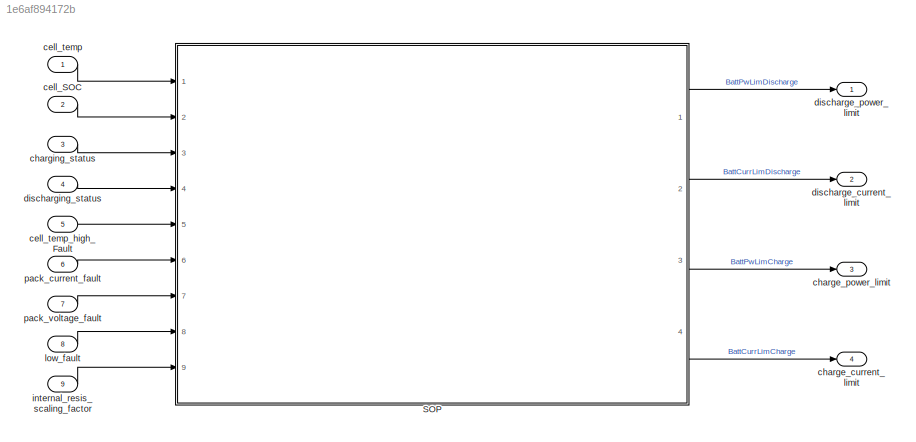
MODEL slx_1e6af894172b
KIND model
CONFIG AbsTol = auto
CONFIG FixedStep = 0.01
CONFIG MaxStep = auto
CONFIG MinStep = auto
CONFIG RelTol = 1e-3
CONFIG SampleTimeConstraint = Unconstrained
CONFIG Solver = FixedStepAuto
CONFIG SolverMode = SingleTasking
CONFIG SolverName = FixedStepAuto
CONFIG StartTime = 0.0
CONFIG StopTime = 10.0
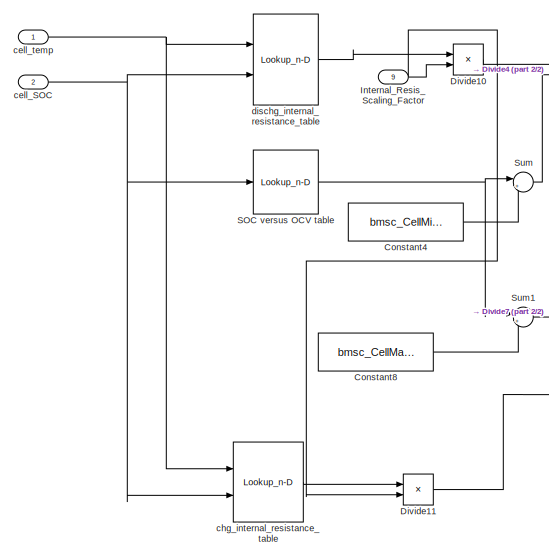
[diagram: SOP - part 1/2, middle left region]
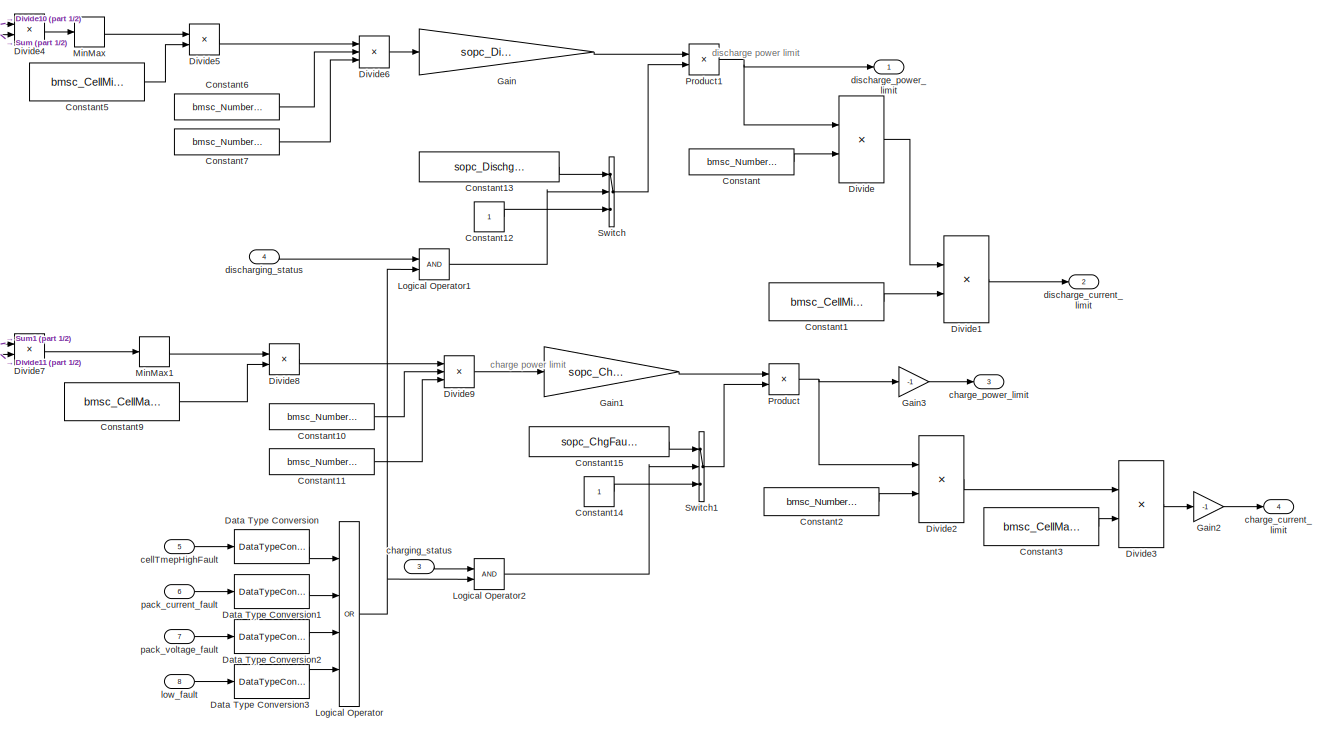
[diagram: SOP - part 2/2, center side, full height]
BLOCK [SubSystem] SOP
  Ports = [9, 4]
  RequestExecContextInheritance = off
  TreatAsAtomicUnit = on
  Variant = off
BLOCK [Constant] SOP/Constant
  Value = bmsc_NumberInSeries*bmsc_NumberInPara
BLOCK [Constant] SOP/Constant1
  Value = bmsc_CellMinVolt
BLOCK [Constant] SOP/Constant10
  Value = bmsc_NumberInSeries
BLOCK [Constant] SOP/Constant11
  Value = bmsc_NumberInPara
BLOCK [Constant] SOP/Constant12
BLOCK [Constant] SOP/Constant13
  Value = sopc_DischgFaultDerate
BLOCK [Constant] SOP/Constant14
BLOCK [Constant] SOP/Constant15
  Value = sopc_ChgFaultDerate
BLOCK [Constant] SOP/Constant2
  Value = bmsc_NumberInSeries*bmsc_NumberInPara
BLOCK [Constant] SOP/Constant3
  Value = bmsc_CellMaxVolt
BLOCK [Constant] SOP/Constant4
  Value = bmsc_CellMinVolt
BLOCK [Constant] SOP/Constant5
  Value = bmsc_CellMinVolt
BLOCK [Constant] SOP/Constant6
  Value = bmsc_NumberInSeries
BLOCK [Constant] SOP/Constant7
  Value = bmsc_NumberInPara
BLOCK [Constant] SOP/Constant8
  Value = bmsc_CellMaxVolt
BLOCK [Constant] SOP/Constant9
  Value = bmsc_CellMaxVolt
BLOCK [DataTypeConversion] SOP/Data Type Conversion
  OutDataTypeStr = boolean
  RndMeth = Floor
  SaturateOnIntegerOverflow = off
BLOCK [DataTypeConversion] SOP/Data Type Conversion1
  OutDataTypeStr = boolean
  RndMeth = Floor
  SaturateOnIntegerOverflow = off
BLOCK [DataTypeConversion] SOP/Data Type Conversion2
  OutDataTypeStr = boolean
  RndMeth = Floor
  SaturateOnIntegerOverflow = off
BLOCK [DataTypeConversion] SOP/Data Type Conversion3
  OutDataTypeStr = boolean
  RndMeth = Floor
  SaturateOnIntegerOverflow = off
BLOCK [Product] SOP/Divide
  InputSameDT = off
  Inputs = */
  OutDataTypeStr = Inherit: Inherit via internal rule
  Ports = [2, 1]
  RndMeth = Floor
  SaturateOnIntegerOverflow = off
BLOCK [Product] SOP/Divide1
  InputSameDT = off
  Inputs = */
  OutDataTypeStr = Inherit: Inherit via internal rule
  Ports = [2, 1]
  RndMeth = Floor
  SaturateOnIntegerOverflow = off
BLOCK [Product] SOP/Divide10
  InputSameDT = off
  Inputs = */
  OutDataTypeStr = Inherit: Inherit via internal rule
  Ports = [2, 1]
  RndMeth = Floor
  SaturateOnIntegerOverflow = off
BLOCK [Product] SOP/Divide11
  InputSameDT = off
  Inputs = */
  OutDataTypeStr = Inherit: Inherit via internal rule
  Ports = [2, 1]
  RndMeth = Floor
  SaturateOnIntegerOverflow = off
BLOCK [Product] SOP/Divide2
  InputSameDT = off
  Inputs = */
  OutDataTypeStr = Inherit: Inherit via internal rule
  Ports = [2, 1]
  RndMeth = Floor
  SaturateOnIntegerOverflow = off
BLOCK [Product] SOP/Divide3
  InputSameDT = off
  Inputs = */
  OutDataTypeStr = Inherit: Inherit via internal rule
  Ports = [2, 1]
  RndMeth = Floor
  SaturateOnIntegerOverflow = off
BLOCK [Product] SOP/Divide4
  InputSameDT = off
  Inputs = /*
  OutDataTypeStr = Inherit: Inherit via internal rule
  Ports = [2, 1]
  RndMeth = Floor
  SaturateOnIntegerOverflow = off
BLOCK [Product] SOP/Divide5
  InputSameDT = off
  Inputs = **
  OutDataTypeStr = Inherit: Inherit via internal rule
  Ports = [2, 1]
  RndMeth = Floor
  SaturateOnIntegerOverflow = off
BLOCK [Product] SOP/Divide6
  InputSameDT = off
  Inputs = ***
  OutDataTypeStr = Inherit: Inherit via internal rule
  Ports = [3, 1]
  RndMeth = Floor
  SaturateOnIntegerOverflow = off
BLOCK [Product] SOP/Divide7
  InputSameDT = off
  Inputs = */
  OutDataTypeStr = Inherit: Inherit via internal rule
  Ports = [2, 1]
  RndMeth = Floor
  SaturateOnIntegerOverflow = off
BLOCK [Product] SOP/Divide8
  InputSameDT = off
  Inputs = **
  OutDataTypeStr = Inherit: Inherit via internal rule
  Ports = [2, 1]
  RndMeth = Floor
  SaturateOnIntegerOverflow = off
BLOCK [Product] SOP/Divide9
  InputSameDT = off
  Inputs = ***
  OutDataTypeStr = Inherit: Inherit via internal rule
  Ports = [3, 1]
  RndMeth = Floor
  SaturateOnIntegerOverflow = off
BLOCK [Gain] SOP/Gain
  Gain = sopc_DischargeDerate
  OutDataTypeStr = Inherit: Inherit via internal rule
  ParamDataTypeStr = Inherit: Inherit via internal rule
  SaturateOnIntegerOverflow = off
BLOCK [Gain] SOP/Gain1
  Gain = sopc_ChargeDerate
  OutDataTypeStr = Inherit: Inherit via internal rule
  ParamDataTypeStr = Inherit: Inherit via internal rule
  SaturateOnIntegerOverflow = off
BLOCK [Gain] SOP/Gain2
  Gain = -1
  OutDataTypeStr = Inherit: Inherit via internal rule
  ParamDataTypeStr = Inherit: Inherit via internal rule
  SaturateOnIntegerOverflow = off
BLOCK [Gain] SOP/Gain3
  Gain = -1
  OutDataTypeStr = Inherit: Inherit via internal rule
  ParamDataTypeStr = Inherit: Inherit via internal rule
  SaturateOnIntegerOverflow = off
BLOCK [Inport] SOP/Internal_Resis_Scaling_Factor
  IconDisplay = Port number
  Port = 9
BLOCK [Logic] SOP/Logical Operator
  AllPortsSameDT = off
  Inputs = 4
  Operator = OR
  OutDataTypeStr = boolean
  Ports = [4, 1]
BLOCK [Logic] SOP/Logical Operator1
  AllPortsSameDT = off
  OutDataTypeStr = boolean
  Ports = [2, 1]
BLOCK [Logic] SOP/Logical Operator2
  AllPortsSameDT = off
  OutDataTypeStr = boolean
  Ports = [2, 1]
BLOCK [MinMax] SOP/MinMax
  InputSameDT = off
  Ports = [1, 1]
  SaturateOnIntegerOverflow = off
BLOCK [MinMax] SOP/MinMax1
  Function = max
  InputSameDT = off
  Ports = [1, 1]
  SaturateOnIntegerOverflow = off
BLOCK [Product] SOP/Product
  InputSameDT = off
  OutDataTypeStr = Inherit: Inherit via internal rule
  Ports = [2, 1]
  RndMeth = Floor
  SaturateOnIntegerOverflow = off
BLOCK [Product] SOP/Product1
  InputSameDT = off
  OutDataTypeStr = Inherit: Inherit via internal rule
  Ports = [2, 1]
  RndMeth = Floor
  SaturateOnIntegerOverflow = off
BLOCK [Lookup_n-D] SOP/SOC versus OCV table
  BreakpointsForDimension1 = sopc_SOCVsOCVX
  InternalRulePriority = Speed
  NumberOfTableDimensions = 1
  Ports = [1, 1]
  RndMeth = Simplest
  Table = sopc_SOCVsOCVY
BLOCK [Sum] SOP/Sum
  IconShape = round
  InputSameDT = off
  Inputs = |+-
  OutDataTypeStr = Inherit: Inherit via internal rule
  Ports = [2, 1]
  SaturateOnIntegerOverflow = off
BLOCK [Sum] SOP/Sum1
  IconShape = round
  InputSameDT = off
  Inputs = |+-
  OutDataTypeStr = Inherit: Inherit via internal rule
  Ports = [2, 1]
  SaturateOnIntegerOverflow = off
BLOCK [Switch] SOP/Switch
  Criteria = u2 > Threshold
  InputSameDT = off
  SaturateOnIntegerOverflow = off
  Threshold = 0.5
BLOCK [Switch] SOP/Switch1
  Criteria = u2 > Threshold
  InputSameDT = off
  SaturateOnIntegerOverflow = off
  Threshold = 0.5
BLOCK [Inport] SOP/cellTmepHighFault
  IconDisplay = Port number
  OutDataTypeStr = uint8
  Port = 5
BLOCK [Inport] SOP/cell_SOC
  IconDisplay = Port number
  Port = 2
BLOCK [Inport] SOP/cell_temp
  IconDisplay = Port number
BLOCK [Outport] SOP/charge_current_limit
  IconDisplay = Port number
  Port = 4
BLOCK [Outport] SOP/charge_power_limit
  IconDisplay = Port number
  Port = 3
BLOCK [Inport] SOP/charging_status
  IconDisplay = Port number
  Port = 3
BLOCK [Lookup_n-D] SOP/chg_internal_resistance_table
  BreakpointsForDimension1 = bmsc_InternalChgResistX
  BreakpointsForDimension2 = bmsc_InternalChgResistY
  Ports = [2, 1]
  RndMeth = Simplest
  Table = bmsc_InternalChgResistZ
BLOCK [Outport] SOP/discharge_current_limit
  IconDisplay = Port number
  Port = 2
BLOCK [Outport] SOP/discharge_power_limit
  IconDisplay = Port number
BLOCK [Inport] SOP/discharging_status
  IconDisplay = Port number
  Port = 4
BLOCK [Lookup_n-D] SOP/dischg_internal_resistance_table
  BreakpointsForDimension1 = bmsc_InternalDischgResistX
  BreakpointsForDimension2 = bmsc_InternalDischgResistY
  Ports = [2, 1]
  RndMeth = Simplest
  Table = bmsc_InternalDischgResistZ
BLOCK [Inport] SOP/low_fault
  IconDisplay = Port number
  OutDataTypeStr = uint8
  Port = 8
BLOCK [Inport] SOP/pack_current_fault
  IconDisplay = Port number
  OutDataTypeStr = uint8
  Port = 6
BLOCK [Inport] SOP/pack_voltage_fault
  IconDisplay = Port number
  OutDataTypeStr = uint8
  Port = 7
BLOCK [Inport] cell_SOC
  IconDisplay = Port number
  Port = 2
  PortDimensions = 40
BLOCK [Inport] cell_temp
  IconDisplay = Port number
  PortDimensions = 40
BLOCK [Inport] cell_temp_high_Fault
  IconDisplay = Port number
  Port = 5
BLOCK [Outport] charge_current_limit
  IconDisplay = Port number
  Port = 4
BLOCK [Outport] charge_power_limit
  IconDisplay = Port number
  Port = 3
BLOCK [Inport] charging_status
  IconDisplay = Port number
  Port = 3
BLOCK [Outport] discharge_current_limit
  IconDisplay = Port number
  Port = 2
BLOCK [Outport] discharge_power_limit
  IconDisplay = Port number
BLOCK [Inport] discharging_status
  IconDisplay = Port number
  Port = 4
BLOCK [Inport] internal_resis_scaling_factor
  IconDisplay = Port number
  Port = 9
  PortDimensions = 40
BLOCK [Inport] low_fault
  IconDisplay = Port number
  Port = 8
BLOCK [Inport] pack_current_fault
  IconDisplay = Port number
  Port = 6
BLOCK [Inport] pack_voltage_fault
  IconDisplay = Port number
  Port = 7
ANNOTATION SOP: charge power limit
ANNOTATION SOP: discharge power limit
LINE SOP/Constant10:1 -> SOP/Divide9:2
LINE SOP/Constant11:1 -> SOP/Divide9:3
LINE SOP/Constant12:1 -> SOP/Switch:3
LINE SOP/Constant13:1 -> SOP/Switch:1
LINE SOP/Constant14:1 -> SOP/Switch1:3
LINE SOP/Constant15:1 -> SOP/Switch1:1
LINE SOP/Constant1:1 -> SOP/Divide1:2
LINE SOP/Constant2:1 -> SOP/Divide2:2
LINE SOP/Constant3:1 -> SOP/Divide3:2
LINE SOP/Constant4:1 -> SOP/Sum:2
LINE SOP/Constant5:1 -> SOP/Divide5:2
LINE SOP/Constant6:1 -> SOP/Divide6:2
LINE SOP/Constant7:1 -> SOP/Divide6:3
LINE SOP/Constant8:1 -> SOP/Sum1:2
LINE SOP/Constant9:1 -> SOP/Divide8:2
LINE SOP/Constant:1 -> SOP/Divide:2
LINE SOP/Data Type Conversion1:1 -> SOP/Logical Operator:2
LINE SOP/Data Type Conversion2:1 -> SOP/Logical Operator:3
LINE SOP/Data Type Conversion3:1 -> SOP/Logical Operator:4
LINE SOP/Data Type Conversion:1 -> SOP/Logical Operator:1
LINE SOP/Divide10:1 -> SOP/Divide4:1
LINE SOP/Divide11:1 -> SOP/Divide7:2
LINE SOP/Divide1:1 -> SOP/discharge_current_limit:1
LINE SOP/Divide2:1 -> SOP/Divide3:1
LINE SOP/Divide3:1 -> SOP/Gain2:1
LINE SOP/Divide4:1 -> SOP/MinMax:1
LINE SOP/Divide5:1 -> SOP/Divide6:1
LINE SOP/Divide6:1 -> SOP/Gain:1
LINE SOP/Divide7:1 -> SOP/MinMax1:1
LINE SOP/Divide8:1 -> SOP/Divide9:1
LINE SOP/Divide9:1 -> SOP/Gain1:1
LINE SOP/Divide:1 -> SOP/Divide1:1
LINE SOP/Gain1:1 -> SOP/Product:1
LINE SOP/Gain2:1 -> SOP/charge_current_limit:1
LINE SOP/Gain3:1 -> SOP/charge_power_limit:1
LINE SOP/Gain:1 -> SOP/Product1:1
NET SOP/Internal_Resis_Scaling_Factor:1 -> SOP/Divide10:2, SOP/Divide11:2
LINE SOP/Logical Operator1:1 -> SOP/Switch:2
LINE SOP/Logical Operator2:1 -> SOP/Switch1:2
NET SOP/Logical Operator:1 -> SOP/Logical Operator1:2, SOP/Logical Operator2:2
LINE SOP/MinMax1:1 -> SOP/Divide8:1
LINE SOP/MinMax:1 -> SOP/Divide5:1
NET SOP/Product1:1 -> SOP/Divide:1, SOP/discharge_power_limit:1
NET SOP/Product:1 -> SOP/Divide2:1, SOP/Gain3:1
NET SOP/SOC versus OCV table:1 -> SOP/Sum1:1, SOP/Sum:1
LINE SOP/Sum1:1 -> SOP/Divide7:1
LINE SOP/Sum:1 -> SOP/Divide4:2
LINE SOP/Switch1:1 -> SOP/Product:2
LINE SOP/Switch:1 -> SOP/Product1:2
LINE SOP/cellTmepHighFault:1 -> SOP/Data Type Conversion:1
NET SOP/cell_SOC:1 -> SOP/SOC versus OCV table:1, SOP/chg_internal_resistance_table:2, SOP/dischg_internal_resistance_table:2
NET SOP/cell_temp:1 -> SOP/chg_internal_resistance_table:1, SOP/dischg_internal_resistance_table:1
LINE SOP/charging_status:1 -> SOP/Logical Operator2:1
LINE SOP/chg_internal_resistance_table:1 -> SOP/Divide11:1
LINE SOP/discharging_status:1 -> SOP/Logical Operator1:1
LINE SOP/dischg_internal_resistance_table:1 -> SOP/Divide10:1
LINE SOP/low_fault:1 -> SOP/Data Type Conversion3:1
LINE SOP/pack_current_fault:1 -> SOP/Data Type Conversion1:1
LINE SOP/pack_voltage_fault:1 -> SOP/Data Type Conversion2:1
LINE SOP:1 -> discharge_power_limit:1
LINE SOP:2 -> discharge_current_limit:1
LINE SOP:3 -> charge_power_limit:1
LINE SOP:4 -> charge_current_limit:1
LINE cell_SOC:1 -> SOP:2
LINE cell_temp:1 -> SOP:1
LINE cell_temp_high_Fault:1 -> SOP:5
LINE charging_status:1 -> SOP:3
LINE discharging_status:1 -> SOP:4
LINE internal_resis_scaling_factor:1 -> SOP:9
LINE low_fault:1 -> SOP:8
LINE pack_current_fault:1 -> SOP:6
LINE pack_voltage_fault:1 -> SOP:7
note: NET lines group one-source signal fan-out (src -> all destinations, sorted); 1:1 wires keep LINE
